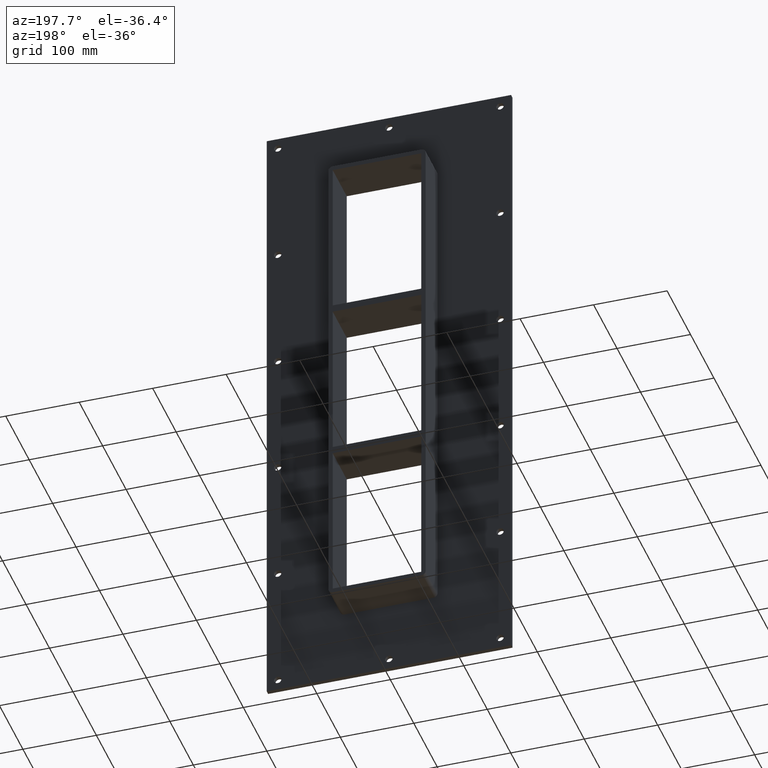
[diagram: clean part render]
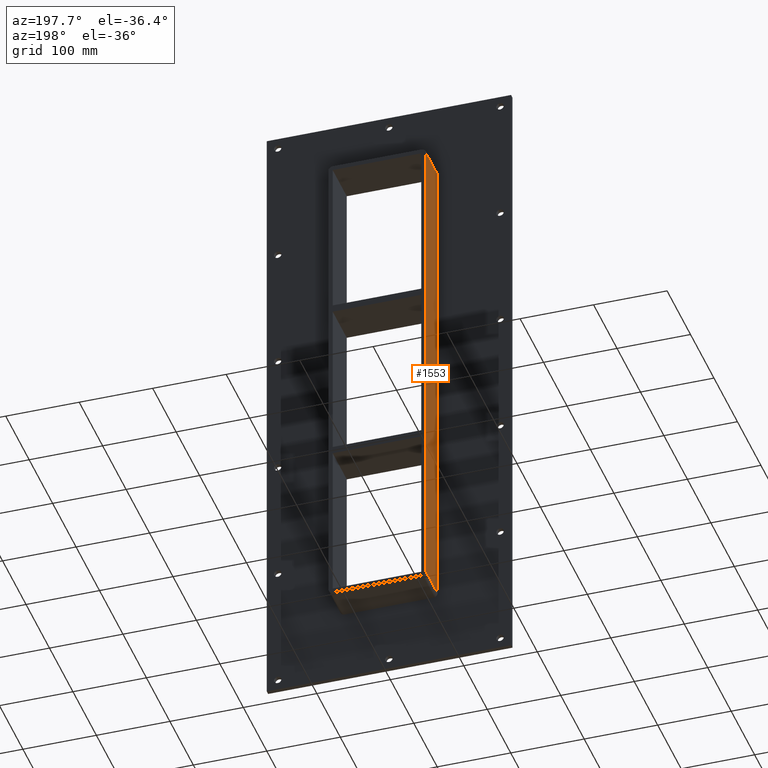
[diagram: same view with one face highlighted and labeled with its STEP entity id]
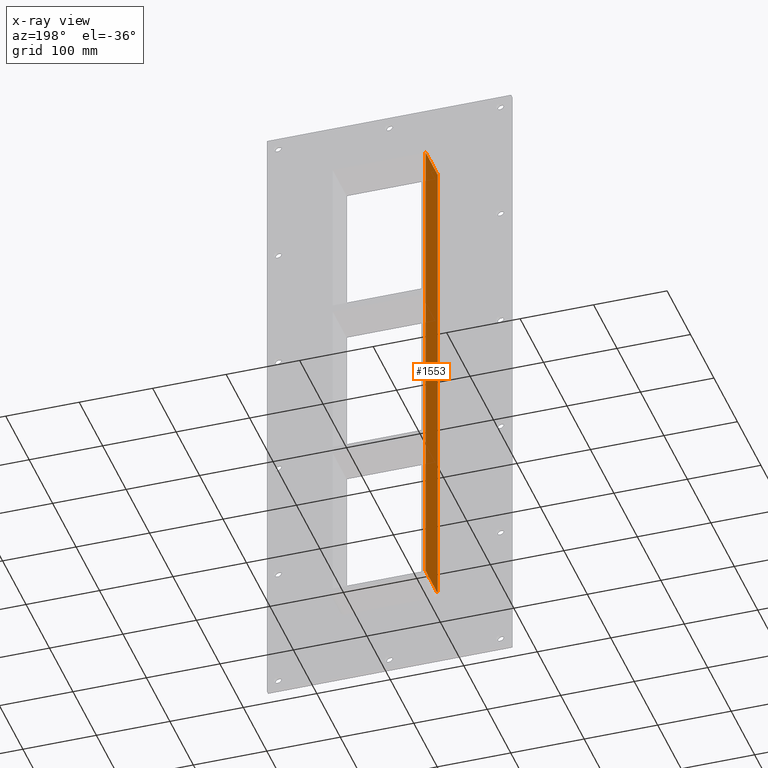
[diagram: x-ray of the same camera — body ghosted, the highlighted face saturated]
A machine part, auxiliary view. The second image highlights one B-rep face of the part: STEP entity #1553.
The next image is the same camera in x-ray: the body ghosted, the highlighted face saturated — about 0% of this face is hidden behind the body in this view.
In plain terms, the highlighted planar face has unit normal (-1, 0, 0).
Its self-contained STEP definition (entity closure, byte-faithful):
#840=CARTESIAN_POINT('',(-66.25,6.000000000000001,-337.0));
#841=VERTEX_POINT('',#840);
#891=CARTESIAN_POINT('',(-66.25,6.000000000000001,337.0));
#892=VERTEX_POINT('',#891);
#900=CARTESIAN_POINT('',(-66.25,6.000000000000001,-337.0));
#901=DIRECTION('',(0.0,0.0,1.0));
#902=VECTOR('',#901,674.0);
#903=LINE('',#900,#902);
#904=EDGE_CURVE('',#841,#892,#903,.T.);
#1511=CARTESIAN_POINT('',(-66.25,57.0,-337.0));
#1512=VERTEX_POINT('',#1511);
#1513=CARTESIAN_POINT('',(-66.25,6.000000000000001,-337.0));
#1514=DIRECTION('',(0.0,1.0,0.0));
#1515=VECTOR('',#1514,51.0);
#1516=LINE('',#1513,#1515);
#1517=EDGE_CURVE('',#841,#1512,#1516,.T.);
#1530=CARTESIAN_POINT('',(-66.25,0.0,-343.0));
#1531=DIRECTION('',(-1.0,0.0,0.0));
#1532=DIRECTION('',(0.0,0.0,1.0));
#1533=AXIS2_PLACEMENT_3D('',#1530,#1531,#1532);
#1534=PLANE('',#1533);
#1535=ORIENTED_EDGE('',*,*,#904,.T.);
#1536=CARTESIAN_POINT('',(-66.25,57.0,337.0));
#1537=VERTEX_POINT('',#1536);
#1538=CARTESIAN_POINT('',(-66.25,57.0,337.0));
#1539=DIRECTION('',(0.0,-1.0,0.0));
#1540=VECTOR('',#1539,51.0);
#1541=LINE('',#1538,#1540);
#1542=EDGE_CURVE('',#1537,#892,#1541,.T.);
#1543=ORIENTED_EDGE('',*,*,#1542,.F.);
#1544=CARTESIAN_POINT('',(-66.25,57.0,-337.00000000000006));
#1545=DIRECTION('',(0.0,0.0,1.0));
#1546=VECTOR('',#1545,674.0);
#1547=LINE('',#1544,#1546);
#1548=EDGE_CURVE('',#1512,#1537,#1547,.T.);
#1549=ORIENTED_EDGE('',*,*,#1548,.F.);
#1550=ORIENTED_EDGE('',*,*,#1517,.F.);
#1551=EDGE_LOOP('',(#1535,#1543,#1549,#1550));
#1552=FACE_OUTER_BOUND('',#1551,.T.);
#1553=ADVANCED_FACE('',(#1552),#1534,.T.);